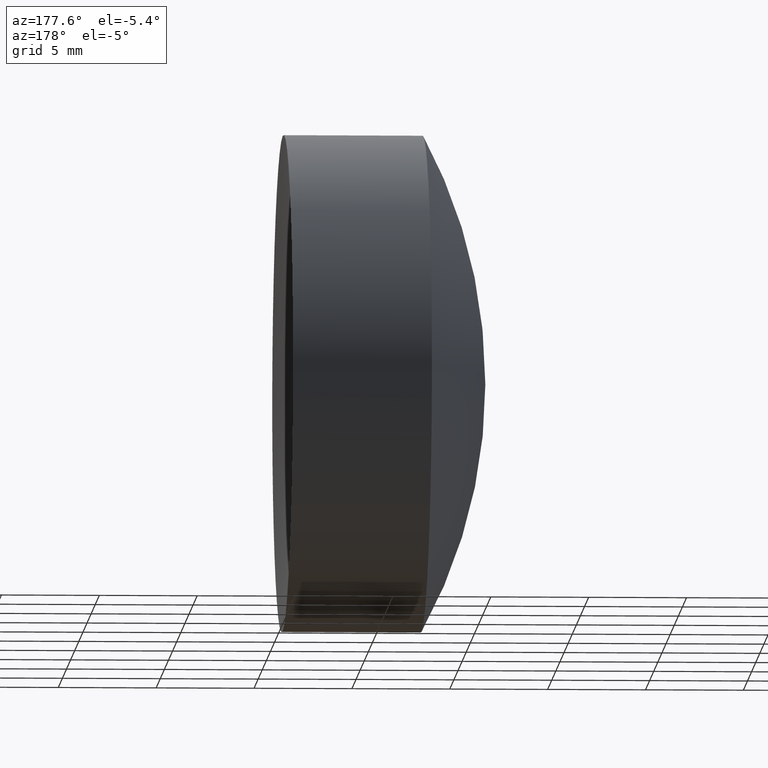
[diagram: clean part render]
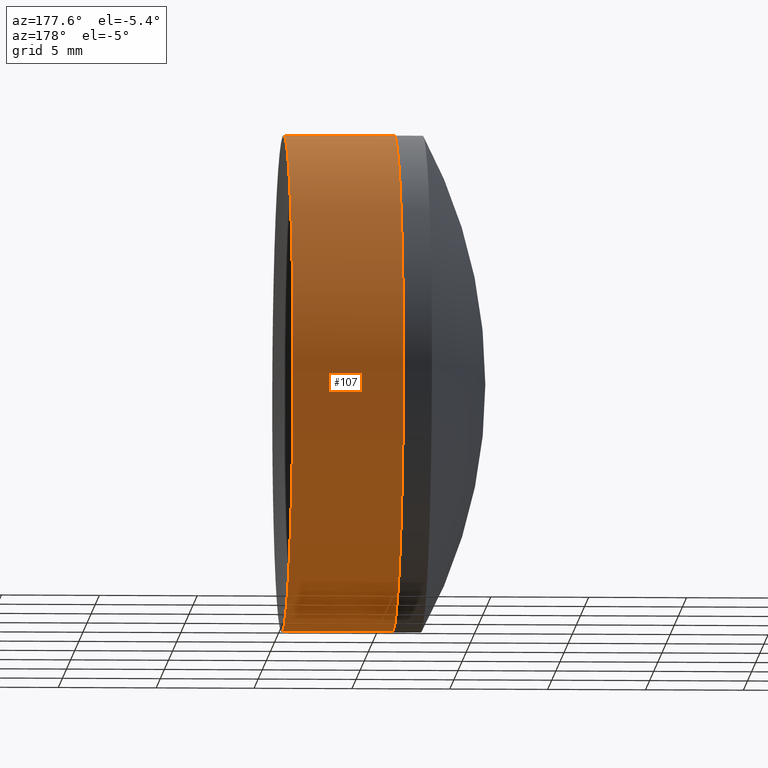
[diagram: same view with one face highlighted and labeled with its STEP entity id]
A machine part, auxiliary view. The second image highlights one B-rep face of the part: STEP entity #107.
In plain terms, the highlighted cylindrical surface (partial cylindrical patch) has radius 12.7 mm, axis along (-1, -0, -0).
Its self-contained STEP definition (entity closure, byte-faithful):
#3 = VECTOR ( 'NONE', #169, 1000.000000000000000 ) ;
#31 = VERTEX_POINT ( 'NONE', #237 ) ;
#34 = CARTESIAN_POINT ( 'NONE',  ( -0.5519199926577972300, 1.555301434917140600E-015, -12.70000000000001700 ) ) ;
#45 = EDGE_CURVE ( 'NONE', #303, #84, #214, .T. ) ;
#53 = EDGE_CURVE ( 'NONE', #84, #253, #172, .T. ) ;
#54 = DIRECTION ( 'NONE',  ( 0.0000000000000000000, 0.0000000000000000000, 1.000000000000000000 ) ) ;
#57 = ORIENTED_EDGE ( 'NONE', *, *, #274, .F. ) ;
#58 = CIRCLE ( 'NONE', #164, 12.70000000000001900 ) ;
#66 = CARTESIAN_POINT ( 'NONE',  ( 44.58527516249046100, -1.555301434917136900E-015, 12.69999999999998500 ) ) ;
#84 = VERTEX_POINT ( 'NONE', #334 ) ;
#92 = CARTESIAN_POINT ( 'NONE',  ( -0.5519199926577972300, 0.0000000000000000000, 12.70000000000001700 ) ) ;
#107 = ADVANCED_FACE ( 'NONE', ( #125 ), #124, .T. ) ;
#120 = DIRECTION ( 'NONE',  ( -1.000000000000000000, -0.0000000000000000000, -0.0000000000000000000 ) ) ;
#124 = CYLINDRICAL_SURFACE ( 'NONE', #132, 12.70000000000001700 ) ;
#125 = FACE_OUTER_BOUND ( 'NONE', #275, .T. ) ;
#132 = AXIS2_PLACEMENT_3D ( 'NONE', #143, #295, #54 ) ;
#143 = CARTESIAN_POINT ( 'NONE',  ( -0.5519199926577972300, 0.0000000000000000000, 0.0000000000000000000 ) ) ;
#159 = VECTOR ( 'NONE', #290, 1000.000000000000000 ) ;
#164 = AXIS2_PLACEMENT_3D ( 'NONE', #170, #120, #337 ) ;
#169 = DIRECTION ( 'NONE',  ( -1.000000000000000000, -0.0000000000000000000, -0.0000000000000000000 ) ) ;
#170 = CARTESIAN_POINT ( 'NONE',  ( 38.94353614673030300, 0.0000000000000000000, 0.0000000000000000000 ) ) ;
#172 = LINE ( 'NONE', #34, #159 ) ;
#207 = DIRECTION ( 'NONE',  ( -1.000000000000000000, -0.0000000000000000000, -0.0000000000000000000 ) ) ;
#214 = CIRCLE ( 'NONE', #242, 12.70000000000001700 ) ;
#230 = ORIENTED_EDGE ( 'NONE', *, *, #53, .T. ) ;
#237 = CARTESIAN_POINT ( 'NONE',  ( 38.94353614673030300, 0.0000000000000000000, 12.70000000000001000 ) ) ;
#242 = AXIS2_PLACEMENT_3D ( 'NONE', #316, #207, #310 ) ;
#253 = VERTEX_POINT ( 'NONE', #278 ) ;
#274 = EDGE_CURVE ( 'NONE', #31, #253, #58, .T. ) ;
#275 = EDGE_LOOP ( 'NONE', ( #317, #230, #57, #341 ) ) ;
#276 = LINE ( 'NONE', #92, #3 ) ;
#277 = EDGE_CURVE ( 'NONE', #303, #31, #276, .T. ) ;
#278 = CARTESIAN_POINT ( 'NONE',  ( 38.94353614673030300, 1.555301434917139600E-015, -12.70000000000002100 ) ) ;
#290 = DIRECTION ( 'NONE',  ( -1.000000000000000000, -0.0000000000000000000, -0.0000000000000000000 ) ) ;
#295 = DIRECTION ( 'NONE',  ( -1.000000000000000000, -0.0000000000000000000, -0.0000000000000000000 ) ) ;
#303 = VERTEX_POINT ( 'NONE', #66 ) ;
#310 = DIRECTION ( 'NONE',  ( 0.0000000000000000000, 0.0000000000000000000, 1.000000000000000000 ) ) ;
#316 = CARTESIAN_POINT ( 'NONE',  ( 44.58527516249045400, 0.0000000000000000000, 0.0000000000000000000 ) ) ;
#317 = ORIENTED_EDGE ( 'NONE', *, *, #45, .T. ) ;
#334 = CARTESIAN_POINT ( 'NONE',  ( 44.58527516249046100, 0.0000000000000000000, -12.69999999999998500 ) ) ;
#337 = DIRECTION ( 'NONE',  ( 0.0000000000000000000, 0.0000000000000000000, 1.000000000000000000 ) ) ;
#341 = ORIENTED_EDGE ( 'NONE', *, *, #277, .F. ) ;